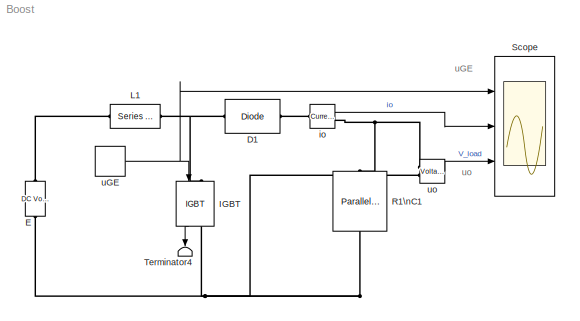
MODEL Boost
KIND model
BLOCK [Reference] D1  REF=powerlib/Power\nElectronics/Diode
  AttributesFormatString = \\n
  Cs = inf
  IC = 10
  Lon = 0.1e-6
  Measurements = off
  Ports = [0, 0, 0, 0, 0, 1, 1]
  Ron = 0.05
  Rs = inf
  ShowPortLabels = on
  SourceBlock = powerlib/Power\nElectronics/Diode
  SourceType = Diode
  Vf = 0.8
BLOCK [Reference] E  REF=powerlib/Electrical\nSources/DC Voltage Source
  Amplitude = 100
  AttributesFormatString = \\n
  Description = source block
  Measurements = None
  Ports = [0, 0, 0, 0, 0, 1, 1]
  ShowPortLabels = on
  SourceBlock = powerlib/Electrical\nSources/DC Voltage Source
  SourceType = DC Voltage Source
BLOCK [Reference] IGBT  REF=powerlib/Power\nElectronics/IGBT
  AttributesFormatString = \\n
  Cs = 1e-7
  IC = 0
  Lon = 1e-6
  Measurements = on
  Ports = [1, 1, 0, 0, 0, 1, 1]
  Ron = 0.01
  Rs = 1000
  ShowPortLabels = on
  SourceBlock = powerlib/Power\nElectronics/IGBT
  SourceType = IGBT
  Tf = 1e-6
  Tt = 1e-6
  Vf = 1
BLOCK [Reference] L1  REF=powerlib/Elements/Series RLC Branch
  AttributesFormatString = \\n
  Capacitance = inf
  Inductance = 20e-3
  LConnTagsString = __new0
  LeftPortType = p1
  Measurements = None
  PhysicalDomain = powersysdomain
  Ports = [0, 0, 0, 0, 0, 1, 1]
  RConnTagsString = __new0
  Resistance = 0
  RightPortType = p1
  SourceBlock = powerlib/Elements/Series RLC Branch
  SourceType = Series RLC Branch
  SubClassName = unknown
BLOCK [Reference] R1\nC1  REF=powerlib/Elements/Parallel RLC Branch
  AttributesFormatString = \\n
  Capacitance = 100e-06
  Inductance = inf
  LConnTagsString = a
  LeftPortType = p1
  Measurements = None
  PhysicalDomain = powersysdomain
  Ports = [0, 0, 0, 0, 0, 1, 1]
  RConnTagsString = __new0
  Resistance = 25
  RightPortType = p1
  SourceBlock = powerlib/Elements/Parallel RLC Branch
  SourceType = Parallel RLC Branch
  SubClassName = unknown
BLOCK [Scope] Scope
  DataFormat = StructureWithTime
  MaxDataPoints = 50000
  NumInputPorts = 3
  Ports = [3]
  SaveName = var
  SaveToWorkspace = on
  TimeRange = 0.01
  YMax = 2~100~500
  YMin = -1~-10~0
  ZoomMode = xonly
BLOCK [Terminator] Terminator4
BLOCK [Reference] io  REF=powerlib/Measurements/Current Measurement
  OutputType = Complex
  PSBequivalent = 0
  PhasorSimulation = off
  Ports = [0, 1, 0, 0, 0, 1, 1]
  ShowPortLabels = on
  SourceBlock = powerlib/Measurements/Current Measurement
  SourceType = Current Measurement
BLOCK [DiscretePulseGenerator] uGE
  Period = 1e-3
  Ports = [0, 1]
  PulseType = Time based
  PulseWidth = 70
BLOCK [Reference] uo  REF=powerlib/Measurements/Voltage Measurement
  AttributesFormatString = \\n
  OutputType = Magnitude
  PSBequivalent = 0
  PhasorSimulation = off
  Ports = [0, 1, 0, 0, 0, 2]
  ShowPortLabels = on
  SourceBlock = powerlib/Measurements/Voltage Measurement
  SourceType = Voltage Measurement
  Tag = PoWeRsYsTeMmEaSuReMeNt
ANNOTATION (root): uGE
ANNOTATION (root): uo
LINE IGBT:1 -> Terminator4:1
LINE io:1 -> Scope:2
NET uGE:1 -> IGBT:1, Scope:1
LINE uo:1 -> Scope:3
PNET net1: D1:LConn1 -- IGBT:LConn1 -- L1:RConn1
PLINE D1:RConn1 -- io:LConn1
PNET net2: E:LConn1 -- IGBT:RConn1 -- R1\nC1:RConn1 -- uo:LConn2
PLINE E:RConn1 -- L1:LConn1
PNET net3: R1\nC1:LConn1 -- io:RConn1 -- uo:LConn1
note: NET lines group one-source signal fan-out (src -> all destinations, sorted); 1:1 wires keep LINE; PNET lines group multi-terminal physical nets as a canonical sorted terminal list (undirected conserving connections); 2-terminal nets keep the pairwise PLINE form
